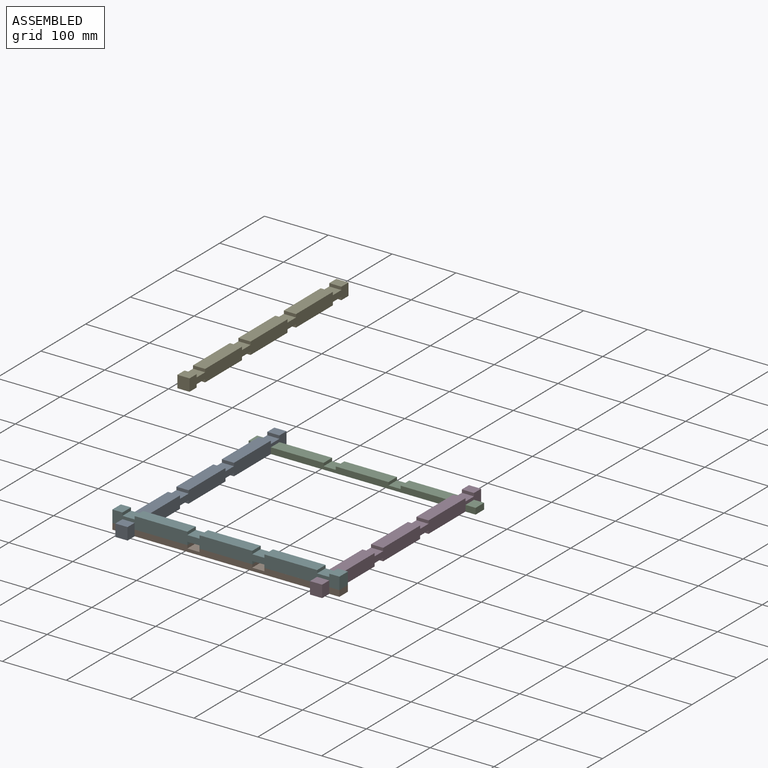
[diagram: assembled view]
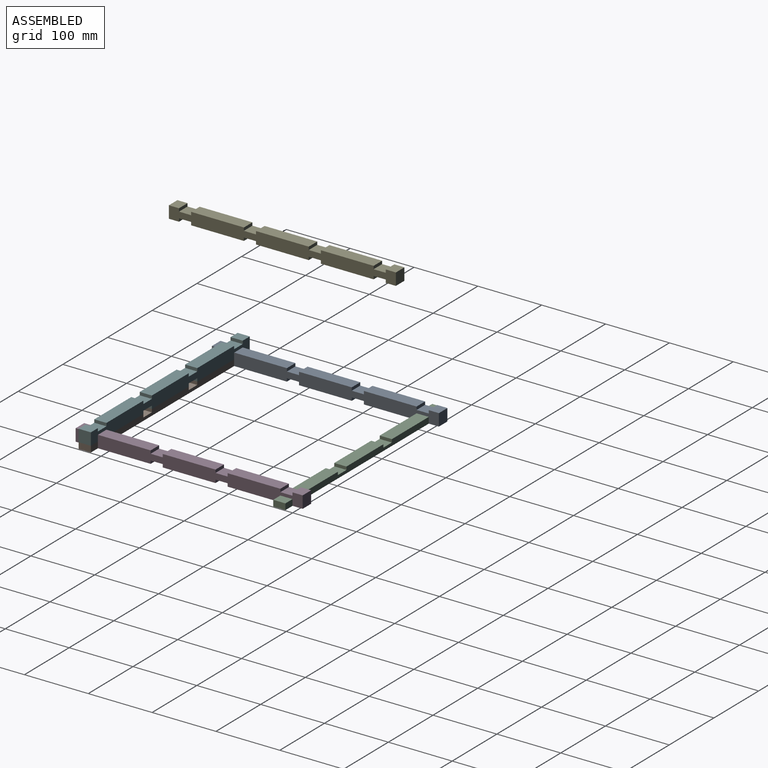
[diagram: assembled view, second angle]
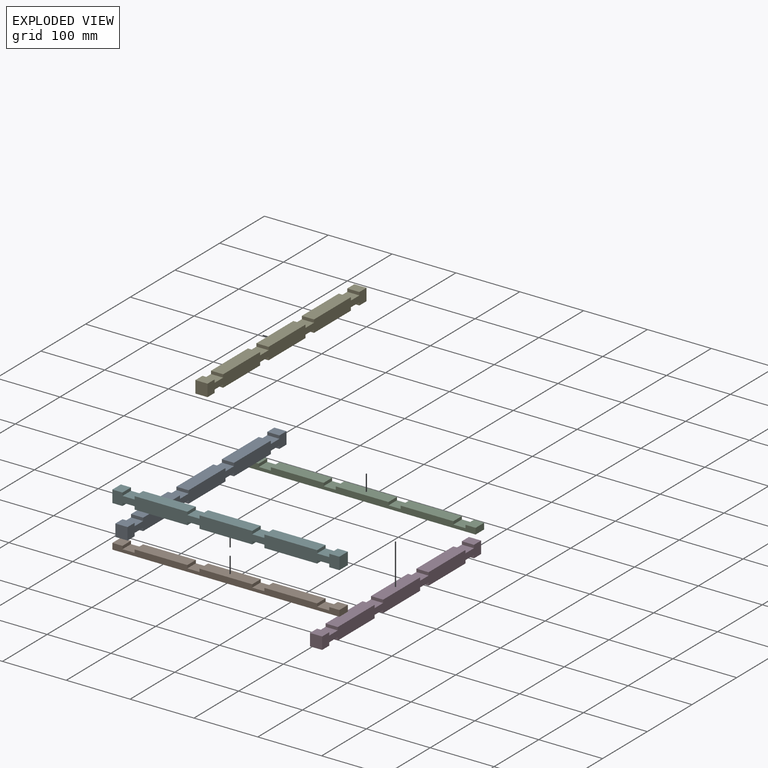
[diagram: exploded view]
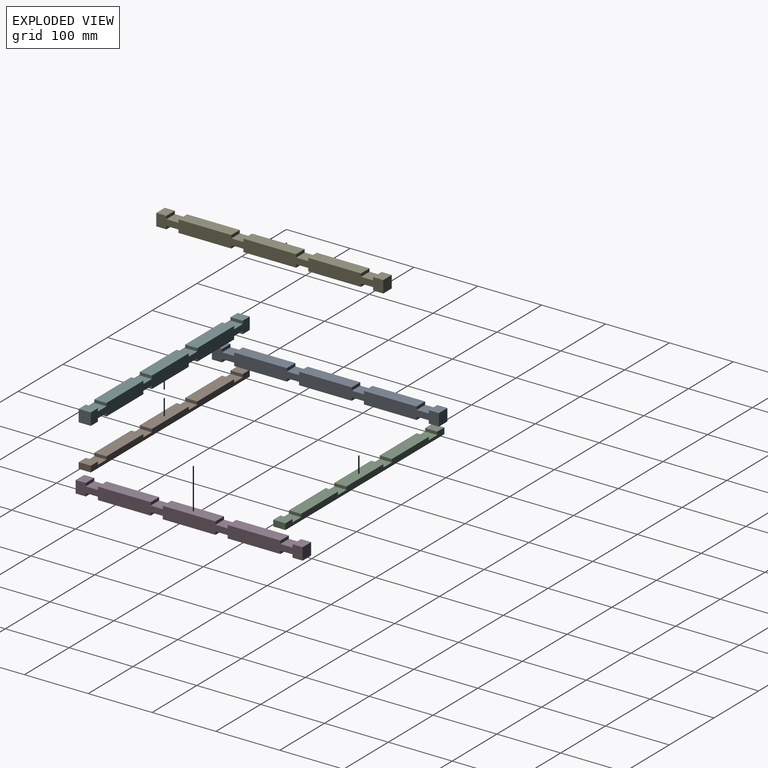
[diagram: exploded view, second angle]
ASSEMBLY  parts=6 mates=4
PART A: 38 faces, bbox 355.6x19.1x19.1 mm
  f0: plane 19.05x19.05mm, normal (-1,0,0), area 362.9mm2, adj f1,f35,f36,f37
  f1: plane 19.05x15.88mm, normal (0,0,-1), area 302.4mm2, adj f0,f2,f36,f37
  f2: plane 19.05x4.76mm, normal (1,0,0), area 90.7mm2, adj f1,f3,f36,f37
  f3: plane 19.05x19.05mm, normal (0,0,-1), area 362.9mm2, adj f2,f4,f36,f37
  f4: plane 19.05x4.76mm, normal (-1,0,0), area 90.7mm2, adj f3,f5,f36,f37
  f5: plane 82.55x19.05mm, normal (0,0,-1), area 1572.6mm2, adj f4,f6,f36,f37
  f6: plane 19.05x4.76mm, normal (1,0,0), area 90.7mm2, adj f5,f7,f36,f37
  f7: plane 19.05x19.05mm, normal (0,0,-1), area 362.9mm2, adj f6,f8,f36,f37
  f8: plane 19.05x4.76mm, normal (-1,0,0), area 90.7mm2, adj f7,f9,f36,f37
  f9: plane 82.55x19.05mm, normal (0,0,-1), area 1572.6mm2, adj f8,f10,f36,f37
  f10: plane 19.05x4.76mm, normal (1,0,0), area 90.7mm2, adj f9,f11,f36,f37
  f11: plane 19.05x19.05mm, normal (0,0,-1), area 362.9mm2, adj f10,f12,f36,f37
  f12: plane 19.05x4.76mm, normal (-1,0,0), area 90.7mm2, adj f11,f13,f36,f37
  f13: plane 82.55x19.05mm, normal (0,0,-1), area 1572.6mm2, adj f12,f14,f36,f37
  f14: plane 19.05x4.76mm, normal (1,0,0), area 90.7mm2, adj f13,f15,f36,f37
  f15: plane 19.05x19.05mm, normal (0,0,-1), area 362.9mm2, adj f14,f16,f36,f37
  f16: plane 19.05x4.76mm, normal (-1,0,0), area 90.7mm2, adj f15,f17,f36,f37
  f17: plane 19.05x15.88mm, normal (0,0,-1), area 302.4mm2, adj f16,f18,f36,f37
  f18: plane 19.05x19.05mm, normal (1,0,0), area 362.9mm2, adj f17,f19,f36,f37
  f19: plane 19.05x15.88mm, normal (0,0,1), area 302.4mm2, adj f18,f20,f36,f37
  f20: plane 19.05x4.76mm, normal (-1,0,0), area 90.7mm2, adj f19,f21,f36,f37
  f21: plane 19.05x19.05mm, normal (0,0,1), area 362.9mm2, adj f20,f22,f36,f37
  f22: plane 19.05x4.76mm, normal (1,0,0), area 90.7mm2, adj f21,f23,f36,f37
  f23: plane 82.55x19.05mm, normal (0,0,1), area 1572.6mm2, adj f22,f24,f36,f37
  f24: plane 19.05x4.76mm, normal (-1,0,0), area 90.7mm2, adj f23,f25,f36,f37
  f25: plane 19.05x19.05mm, normal (0,0,1), area 362.9mm2, adj f24,f26,f36,f37
  f26: plane 19.05x4.76mm, normal (1,0,0), area 90.7mm2, adj f25,f27,f36,f37
  f27: plane 82.55x19.05mm, normal (0,0,1), area 1572.6mm2, adj f26,f28,f36,f37
  f28: plane 19.05x4.76mm, normal (-1,0,0), area 90.7mm2, adj f27,f29,f36,f37
  f29: plane 19.05x19.05mm, normal (0,0,1), area 362.9mm2, adj f28,f30,f36,f37
  f30: plane 19.05x4.76mm, normal (1,0,0), area 90.7mm2, adj f29,f31,f36,f37
  f31: plane 82.55x19.05mm, normal (0,0,1), area 1572.6mm2, adj f30,f32,f36,f37
  f32: plane 19.05x4.76mm, normal (-1,0,0), area 90.7mm2, adj f31,f33,f36,f37
  f33: plane 19.05x19.05mm, normal (0,0,1), area 362.9mm2, adj f32,f34,f36,f37
  f34: plane 19.05x4.76mm, normal (1,0,0), area 90.7mm2, adj f33,f35,f36,f37
  f35: plane 19.05x15.88mm, normal (0,0,1), area 302.4mm2, adj f0,f34,f36,f37
  f36: plane 355.6x19.05mm, normal (0,-1,0), area 6048.4mm2, adj f0,f1,f2,f3,f4,f5,f6,f7
  f37: plane 355.6x19.05mm, normal (0,1,0), area 6048.4mm2, adj f0,f1,f2,f3,f4,f5,f6,f7
PART B: 22 faces, bbox 355.6x19.1x9.5 mm
  f0: plane 19.05x4.76mm, normal (1,0,0), area 90.7mm2, adj f1,f19,f20,f21
  f1: plane 82.55x19.05mm, normal (0,0,1), area 1572.6mm2, adj f0,f2,f20,f21
  f2: plane 19.05x4.76mm, normal (-1,0,0), area 90.7mm2, adj f1,f3,f20,f21
  f3: plane 19.05x19.05mm, normal (0,0,1), area 362.9mm2, adj f2,f4,f20,f21
  f4: plane 19.05x4.76mm, normal (1,0,0), area 90.7mm2, adj f3,f5,f20,f21
  f5: plane 19.05x15.88mm, normal (0,0,1), area 302.4mm2, adj f4,f6,f20,f21
  f6: plane 19.05x9.53mm, normal (-1,0,0), area 181.5mm2, adj f5,f7,f20,f21
  f7: plane 355.6x19.05mm, normal (0,0,-1), area 6774.2mm2, adj f6,f8,f20,f21
  f8: plane 19.05x9.53mm, normal (1,0,0), area 181.5mm2, adj f7,f9,f20,f21
  f9: plane 19.05x15.88mm, normal (0,0,1), area 302.4mm2, adj f8,f10,f20,f21
  f10: plane 19.05x4.76mm, normal (-1,0,0), area 90.7mm2, adj f9,f11,f20,f21
  f11: plane 19.05x19.05mm, normal (0,0,1), area 362.9mm2, adj f10,f12,f20,f21
  f12: plane 19.05x4.76mm, normal (1,0,0), area 90.7mm2, adj f11,f13,f20,f21
  f13: plane 82.55x19.05mm, normal (0,0,1), area 1572.6mm2, adj f12,f14,f20,f21
  f14: plane 19.05x4.76mm, normal (-1,0,0), area 90.7mm2, adj f13,f15,f20,f21
  f15: plane 19.05x19.05mm, normal (0,0,1), area 362.9mm2, adj f14,f16,f20,f21
  f16: plane 19.05x4.76mm, normal (1,0,0), area 90.7mm2, adj f15,f17,f20,f21
  f17: plane 82.55x19.05mm, normal (0,0,1), area 1572.6mm2, adj f16,f18,f20,f21
  f18: plane 19.05x4.76mm, normal (-1,0,0), area 90.7mm2, adj f17,f19,f20,f21
  f19: plane 19.05x19.05mm, normal (0,0,1), area 362.9mm2, adj f0,f18,f20,f21
  f20: plane 355.6x9.53mm, normal (0,-1,0), area 3024.2mm2, adj f0,f1,f2,f3,f4,f5,f6,f7
  f21: plane 355.6x9.53mm, normal (0,1,0), area 3024.2mm2, adj f0,f1,f2,f3,f4,f5,f6,f7
PART C: same geometry as B
PART D: same geometry as A
PART E: same geometry as A
PART F: same geometry as A
PLACE A rot(axis=(0,0,1),90deg) t=(-197.26,30.86,3.17)mm
PLACE B t=(-31.06,-116.3,3.17)mm fixed
PLACE C rot(axis=(0.43,0.19,0.88),0deg) t=(-31.06,188.5,3.17)mm
PLACE D rot(axis=(0,0,-1),90deg) t=(126.59,22.3,3.17)mm
PLACE E rot(axis=(0,0,-1),90deg) t=(-81.4,22.72,239.47)mm
PLACE F rot(axis=(-0.28,0.82,0.5),0deg) t=(-31.06,-116.3,12.7)mm
MATE fastened B.f3 <-> A.f3  axis (0,0,1) through (-187.74,-125.82,-1.59)mm
MATE fastened B.f11 <-> D.f15  axis (0,0,1) through (117.06,-125.82,-1.59)mm
MATE fastened F.f3 <-> A.f33  axis (0,0,-1) through (-187.74,-125.82,7.94)mm
MATE fastened A.f15 <-> C.f3  axis (0,0,-1) through (-187.74,178.98,-1.59)mm
